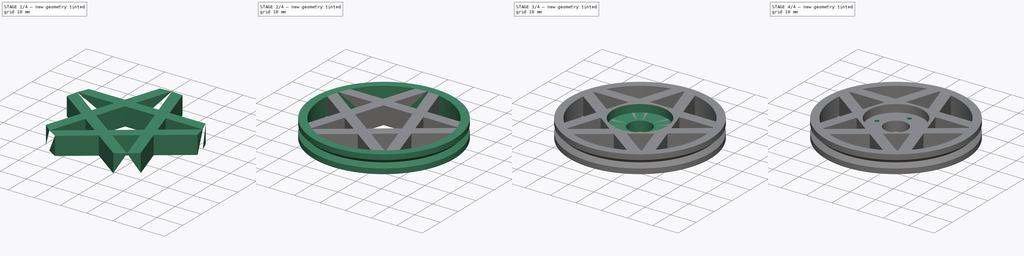
[diagram: build sequence overview — one tinted view per stage of 4, left to right]
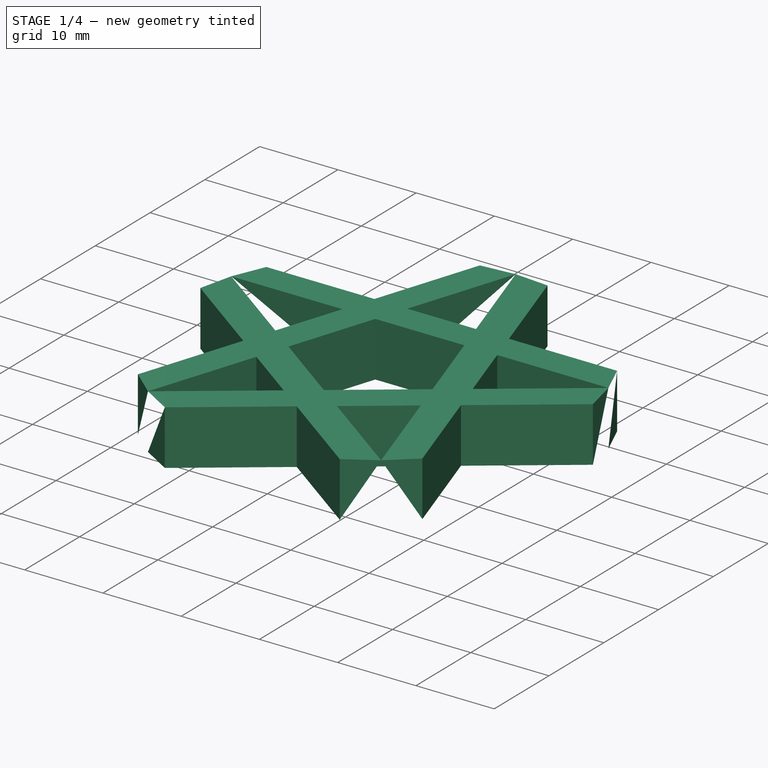
[diagram: stage 1 of 4 — iso view after this stage's code; geometry added in this stage tinted green]
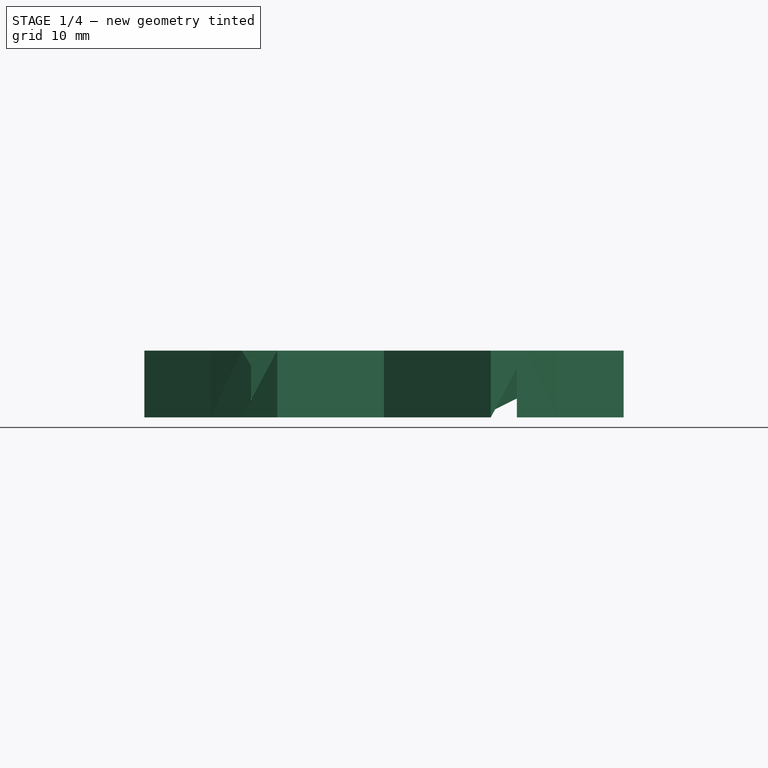
[diagram: stage 1 of 4 — front view after this stage's code; geometry added in this stage tinted green]
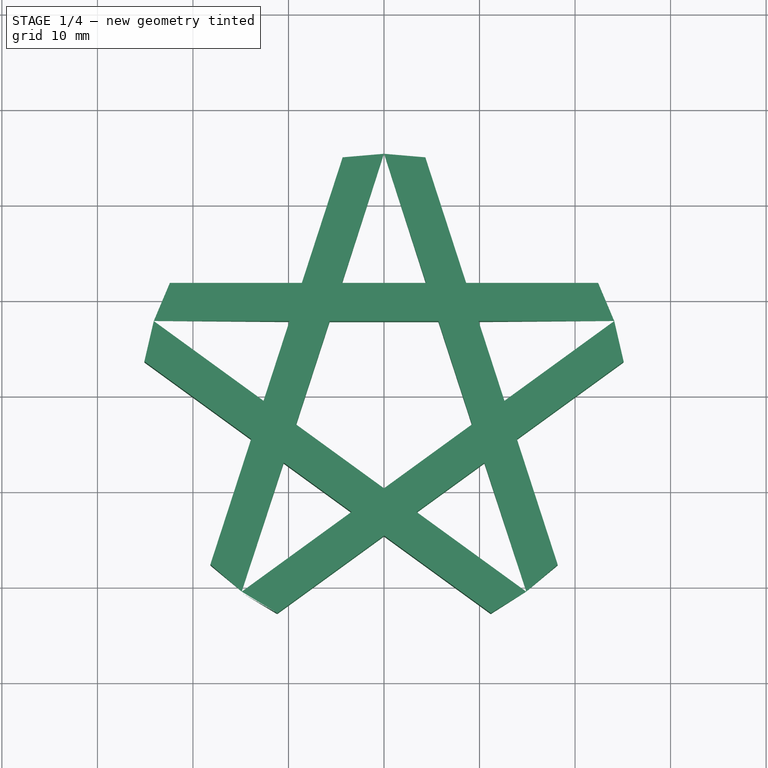
[diagram: stage 1 of 4 — top view after this stage's code; geometry added in this stage tinted green]
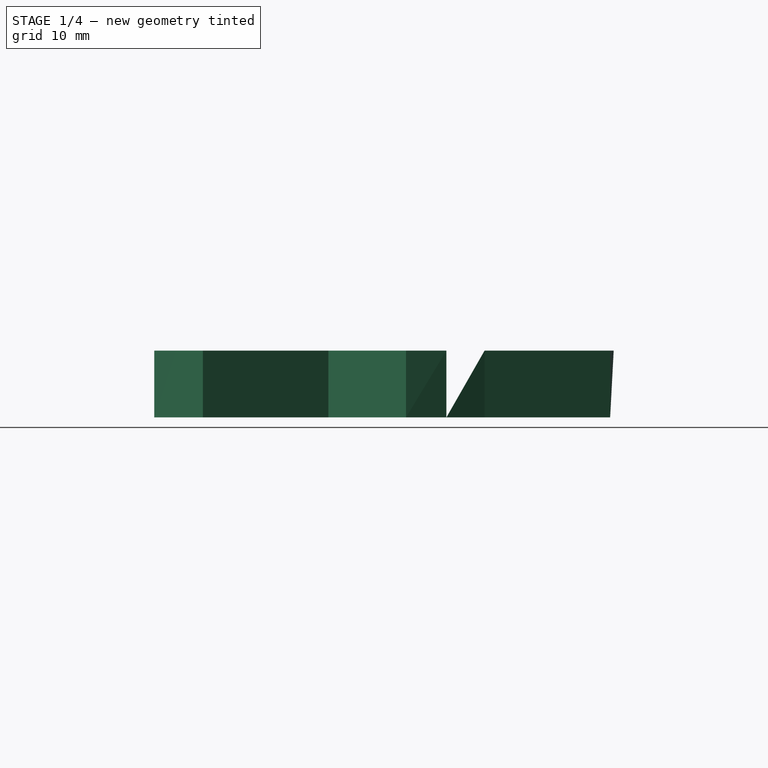
[diagram: stage 1 of 4 — right view after this stage's code; geometry added in this stage tinted green]
FCSTD DOCUMENT  (FreeCAD 0.14R3702 (Git))
Label: Miniskybot-wheel-pentacle-futaba3003
License: CC-BY 3.0
LicenseURL: http://creativecommons.org/licenses/by/3.0/
objects: Sketcher::SketchObject×6, Part::Feature×5, PartDesign::Pocket×3, PartDesign::Pad×2, Part::MultiFuse×2, PartDesign::Revolution×1, PartDesign::PolarPattern×1
note: 26 computed .brp shape members not serialized (recipe doc carries the construction recipe); baked Part::Feature solids carry a one-line shape summary decoded from their .brp

FEATURE [Sketcher::SketchObject] Sketch
  sketch-geometry (12):
    g0: Circle [constr] CenterX=0 CenterY=0 CenterZ=0 NormalX=0 NormalY=0 NormalZ=1 Radius=25.3438
    g1: LineSegment [constr] StartX=-9.20667 StartY=-2.99143 StartZ=0 EndX=-5.69003 EndY=7.83166 EndZ=0
    g2: LineSegment [constr] StartX=0 StartY=0 StartZ=0 EndX=0 EndY=-9.68046 EndZ=0
    g3: LineSegment [constr] StartX=0 StartY=0 StartZ=0 EndX=-9.20667 EndY=-2.99143 EndZ=0
    g4: LineSegment [constr] StartX=5.69003 StartY=7.83166 StartZ=0 EndX=9.20667 EndY=-2.99143 EndZ=0
    g5: LineSegment [constr] StartX=9.20667 StartY=-2.99143 StartZ=0 EndX=0 EndY=-9.68046 EndZ=0
    g6: LineSegment [constr] StartX=-5.69003 StartY=7.83166 StartZ=0 EndX=0 EndY=0 EndZ=0
    g7: LineSegment [constr] StartX=-24.1034 StartY=7.83166 StartZ=0 EndX=14.8967 EndY=-20.5035 EndZ=0
    g8: LineSegment StartX=-24.1034 StartY=7.83166 StartZ=0 EndX=24.1034 EndY=7.83166 EndZ=0
    g9: LineSegment StartX=-22.4125 StartY=11.8317 StartZ=0 EndX=22.4125 EndY=11.8317 EndZ=0
    g10: LineSegment StartX=-24.1034 StartY=7.83166 StartZ=0 EndX=-22.4125 EndY=11.8317 EndZ=0
    g11: LineSegment StartX=22.4125 StartY=11.8317 StartZ=0 EndX=24.1034 EndY=7.83166 EndZ=0
  constraints (31):
    c: Coincident(g0,g-1)
    c: PointOnObject(g2,g-2)
    c: Coincident(g2,g-1)
    c: Coincident(g3,g-1)
    c: Equal(g3,g2)
    c: Angle(g3,g2) = 1.25664
    c: Coincident(g4,g5)
    c: Symmetric(g1,g4,g-2)
    c: Symmetric(g4,g1,g-2)
    c: Coincident(g6,g1)
    c: Coincident(g6,g-1)
    c: Equal(g6,g3)
    c: Coincident(g1,g3)
    c: Coincident(g2,g5)
    c: Angle(g6,g3) = 1.25664
    c: PointOnObject(g7,g0)
    c: PointOnObject(g7,g0)
    c: PointOnObject(g1,g7)
    c: PointOnObject(g2,g7)
    c: Horizontal(g8)
    c: Coincident(g8,g7)
    c: PointOnObject(g8,g0)
    c: PointOnObject(g4,g8)
    c: Horizontal(g9)
    c: PointOnObject(g9,g0)
    c: PointOnObject(g9,g0)
    c: DistanceY(g9,g7) = -4
    c: Coincident(g10,g7)
    c: Coincident(g10,g9)
    c: Coincident(g11,g8)
    c: Coincident(g11,g9)
FEATURE [PartDesign::Pad] Pad
  Length = 7
  Length2 = 100
  Midplane = true
  Sketch = -> Sketch
  Type = 0
FEATURE [Part::Feature] Pad001
  Placement = pos=(0,0,0) rot=(0,0,1;1.25664rad)
  shape: bbox 18.18 x 45.85 x 7 mm, 6 faces (baked)
FEATURE [Part::Feature] Pad002
  Placement = pos=(0,0,0) rot=(0,0,1;2.51327rad)
  shape: bbox 39.98 x 30.58 x 7 mm, 6 faces (baked)
FEATURE [Part::Feature] Pad003
  Placement = pos=(0,0,0) rot=(0,0,1;3.76991rad)
  shape: bbox 39.98 x 30.58 x 7 mm, 6 faces (baked)
FEATURE [Part::Feature] Pad004
  Placement = pos=(0,0,0) rot=(0,0,-1;1.25664rad)
  shape: bbox 18.18 x 45.85 x 7 mm, 6 faces (baked)
FEATURE [Part::MultiFuse] Fusion  label="star"
  Shapes = -> [Pad,Pad002,Pad001,Pad004,Pad003]
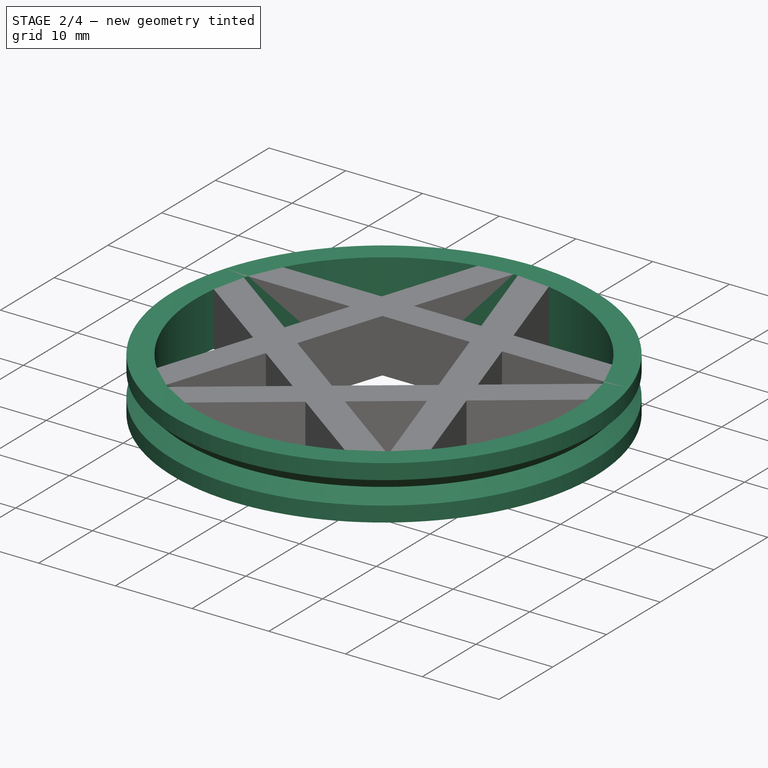
[diagram: stage 2 of 4 — iso view after this stage's code; geometry added in this stage tinted green]
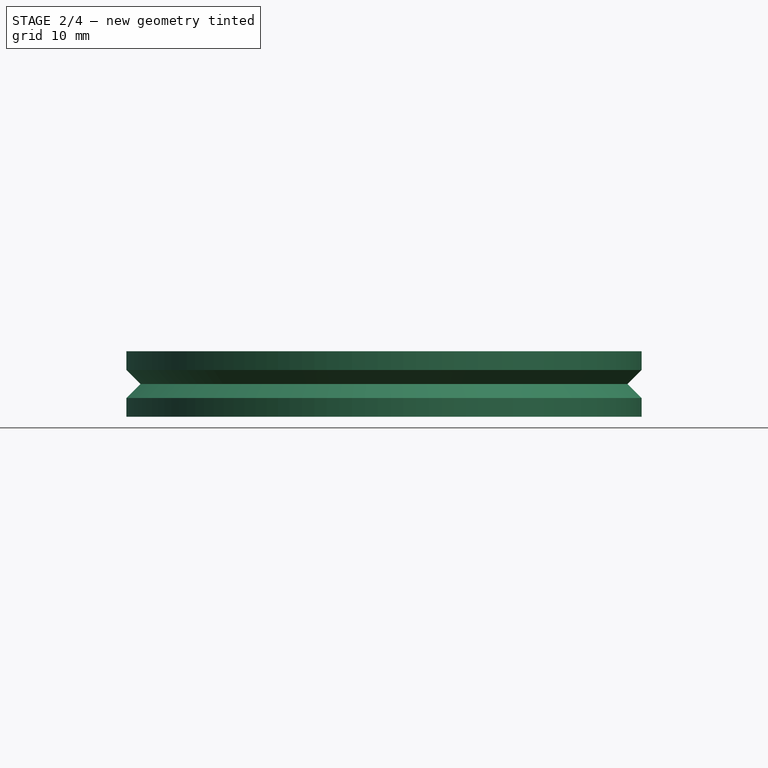
[diagram: stage 2 of 4 — front view after this stage's code; geometry added in this stage tinted green]
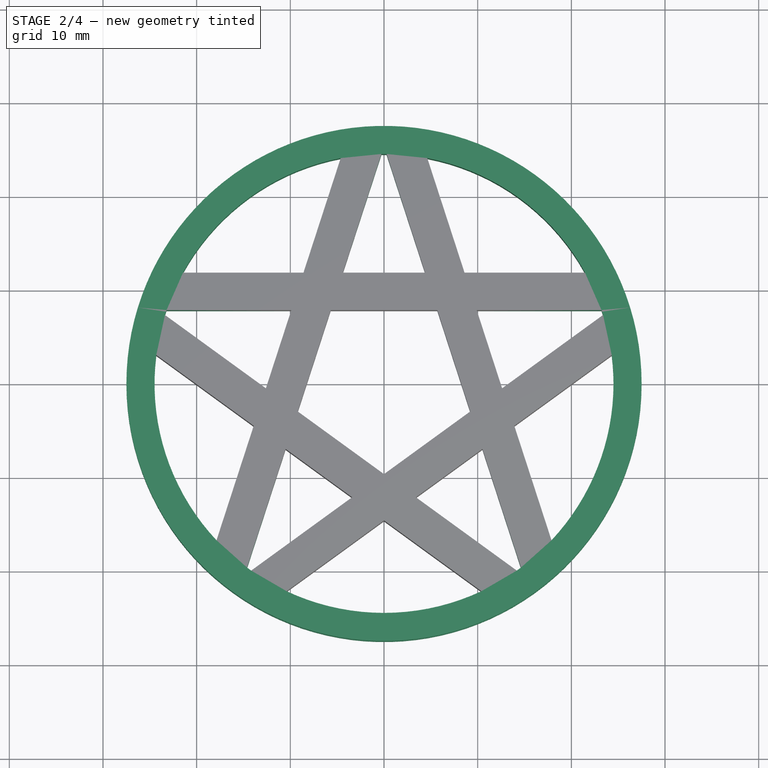
[diagram: stage 2 of 4 — top view after this stage's code; geometry added in this stage tinted green]
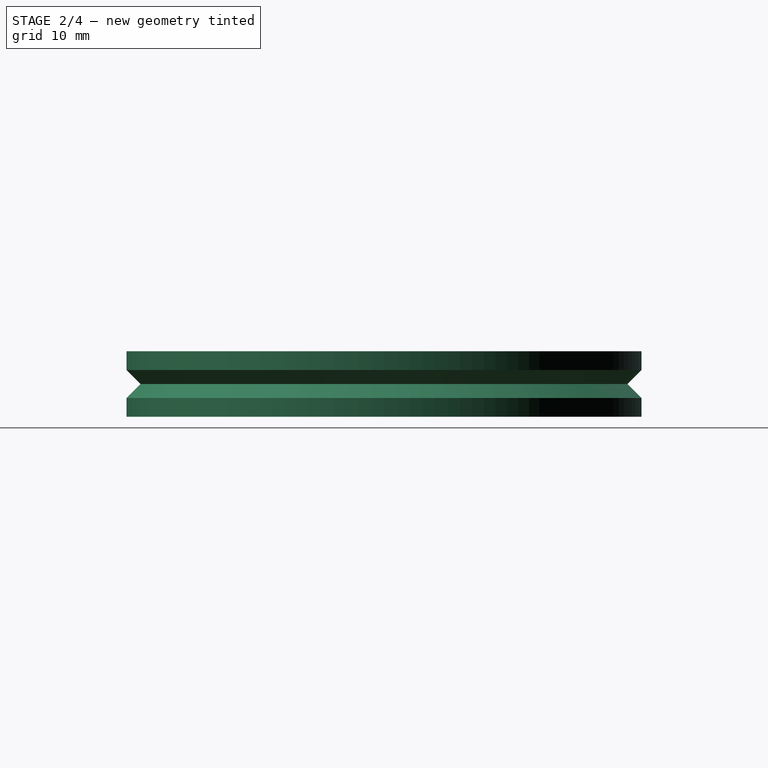
[diagram: stage 2 of 4 — right view after this stage's code; geometry added in this stage tinted green]
FEATURE [Sketcher::SketchObject] Sketch002  label="wheel-generic-sketch"
  Placement = pos=(0,0,0) rot=(1,0,0;1.5708rad)
  sketch-geometry (7):
    g0: LineSegment StartX=24.5 StartY=-3.5 StartZ=0 EndX=24.5 EndY=3.5 EndZ=0
    g1: LineSegment StartX=27.5 StartY=3.5 StartZ=0 EndX=27.5 EndY=1.5 EndZ=0
    g2: LineSegment StartX=27.5 StartY=1.5 StartZ=0 EndX=26 EndY=0 EndZ=0
    g3: LineSegment StartX=26 StartY=0 StartZ=0 EndX=27.5 EndY=-1.5 EndZ=0
    g4: LineSegment StartX=27.5 StartY=-1.5 StartZ=0 EndX=27.5 EndY=-3.5 EndZ=0
    g5: LineSegment StartX=24.5 StartY=3.5 StartZ=0 EndX=27.5 EndY=3.5 EndZ=0
    g6: LineSegment StartX=24.5 StartY=-3.5 StartZ=0 EndX=27.5 EndY=-3.5 EndZ=0
  constraints (20):
    c: Vertical(g0)
    c: Vertical(g1)
    c: Coincident(g1,g2)
    c: Coincident(g2,g3)
    c: Coincident(g3,g4)
    c: Vertical(g4)
    c: Symmetric(g0,g0,g-1)
    c: PointOnObject(g2,g-1)
    c: Symmetric(g3,g1,g-1)
    c: Angle(g2,g-1) = 2.35619
    c: DistanceY(g3,g1) = 3
    c: DistanceY(g0) = 7
    c: Coincident(g0,g5)
    c: Coincident(g6,g0)
    c: Coincident(g1,g5)
    c: Horizontal(g5)
    c: Coincident(g4,g6)
    c: Horizontal(g6)
    c: DistanceX(g5) = 3
    c: DistanceX(g-1,g1) = 27.5
FEATURE [PartDesign::Revolution] Revolution  label="rim"
  Angle = 360
  Axis = (0,0,1)
  Base = (0,0,0)
  Placement = pos=(0,0,0) rot=(1,0,0;1.5708rad)
  ReferenceAxis = -> Sketch002 [V_Axis]
  Reversed = true
  Sketch = -> Sketch002
FEATURE [Part::MultiFuse] Fusion001  label="pentacle-rim-1"
  Shapes = -> [Revolution,Fusion]
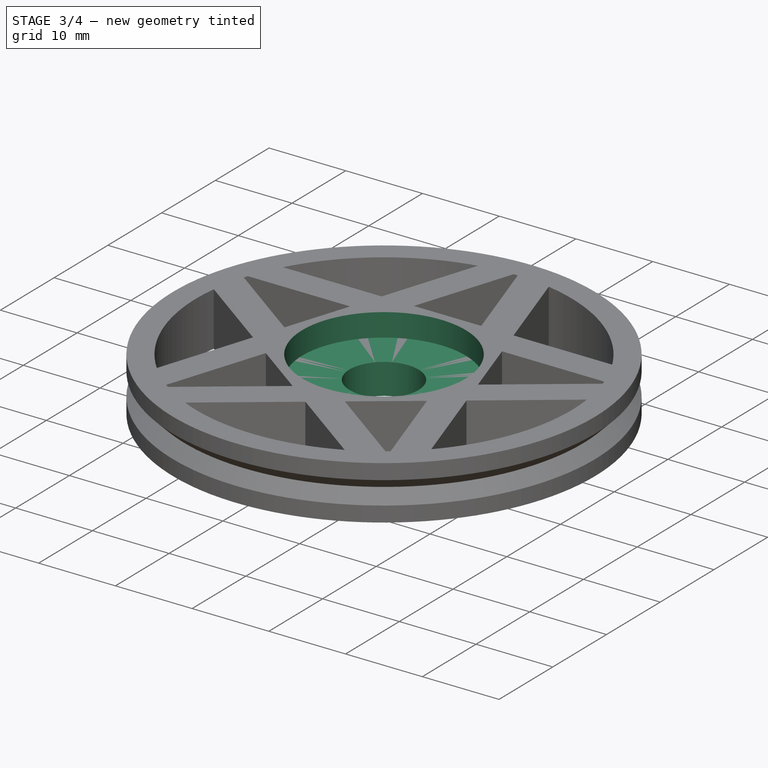
[diagram: stage 3 of 4 — iso view after this stage's code; geometry added in this stage tinted green]
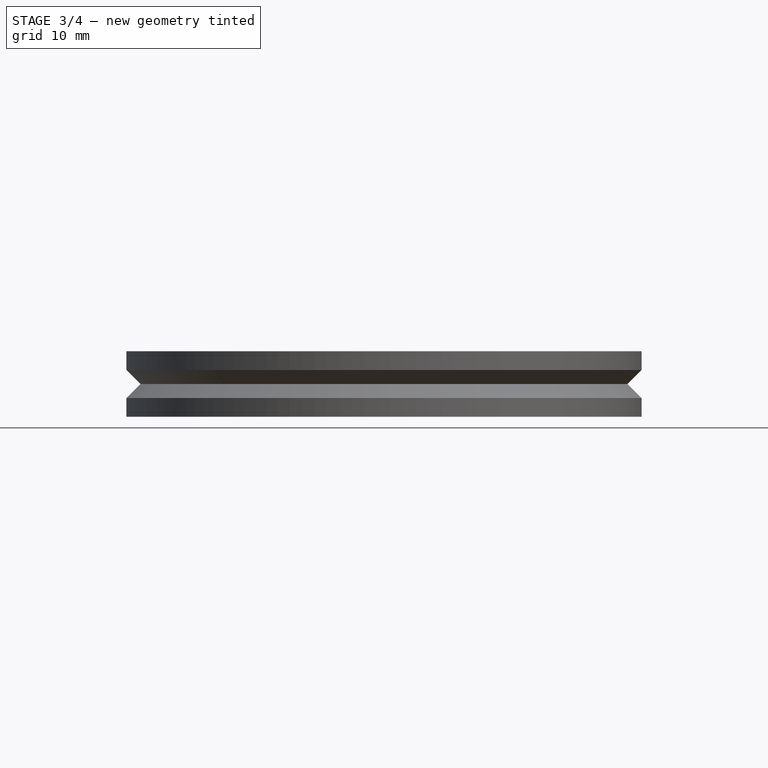
[diagram: stage 3 of 4 — front view after this stage's code; geometry added in this stage tinted green]
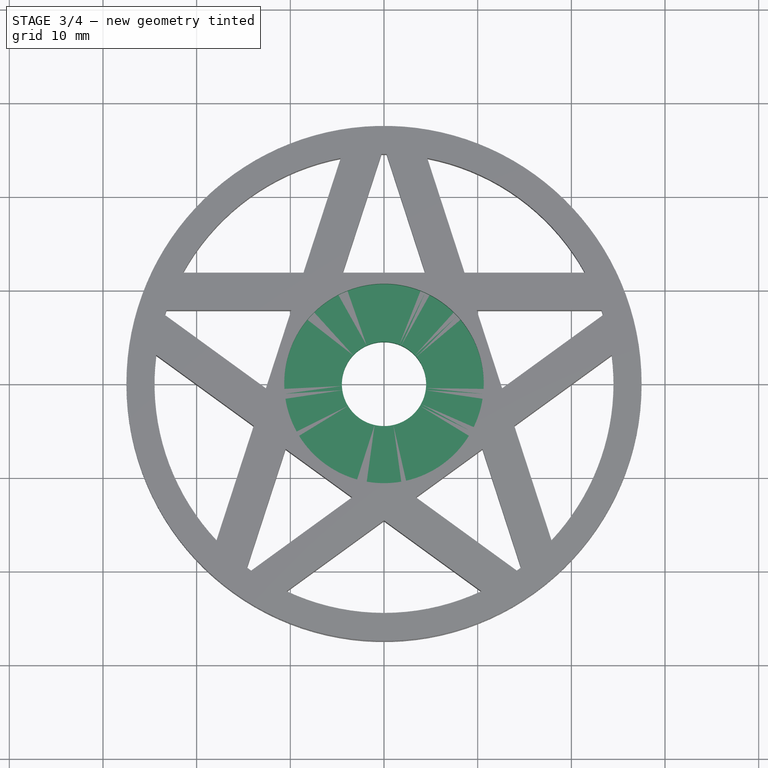
[diagram: stage 3 of 4 — top view after this stage's code; geometry added in this stage tinted green]
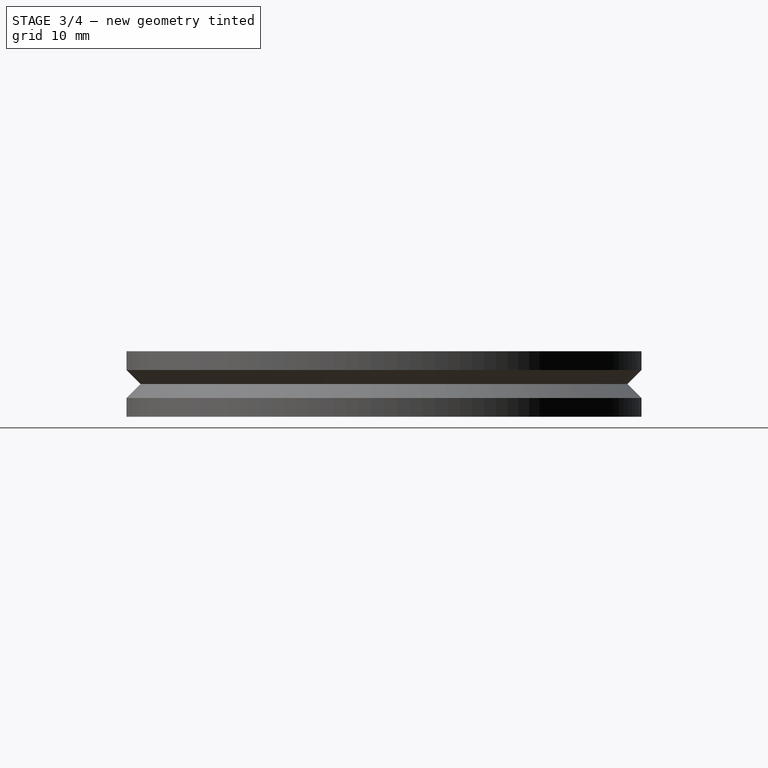
[diagram: stage 3 of 4 — right view after this stage's code; geometry added in this stage tinted green]
FEATURE [Sketcher::SketchObject] Sketch003
  ExternalGeometry = -> [Fusion001]
  Placement = pos=(0,0,3.5) rot=(0,0,1;0rad)
  Support = -> Fusion001 [Face5]
  sketch-geometry (5):
    g0: LineSegment StartX=-5.69003 StartY=7.83166 StartZ=0 EndX=5.69003 EndY=7.83166 EndZ=0
    g1: LineSegment StartX=5.69003 StartY=7.83166 StartZ=0 EndX=9.20667 EndY=-2.99143 EndZ=0
    g2: LineSegment StartX=9.20667 StartY=-2.99143 StartZ=0 EndX=0 EndY=-9.68046 EndZ=0
    g3: LineSegment StartX=0 StartY=-9.68046 StartZ=0 EndX=-9.20667 EndY=-2.99143 EndZ=0
    g4: LineSegment StartX=-9.20667 StartY=-2.99143 StartZ=0 EndX=-5.69003 EndY=7.83166 EndZ=0
  constraints (10):
    c: Coincident(g0,g1)
    c: Coincident(g1,g2)
    c: Coincident(g2,g3)
    c: Coincident(g3,g4)
    c: Coincident(g4,g0)
    c: Coincident(g0,g-3)
    c: Coincident(g0,g-3)
    c: Coincident(g1,g-5)
    c: Coincident(g2,g-5)
    c: Coincident(g3,g-4)
FEATURE [PartDesign::Pad] Pad005  label="pentacle-wheel-1"
  Length = 7
  Length2 = 100
  Reversed = true
  Sketch = -> Sketch003
  Type = 0
FEATURE [Sketcher::SketchObject] Sketch001  label="rounded-horn-sketch"
  Placement = pos=(0,0,3.5) rot=(0,0,1;0rad)
  Support = -> Pad005 [Face5]
  sketch-geometry (1):
    g0: Circle CenterX=0 CenterY=0 CenterZ=0 NormalX=0 NormalY=0 NormalZ=1 Radius=10.65
  constraints (3):
    c: PointOnObject(g0,g-2)
    c: Radius(g0) = 10.65
    c: Coincident(g0,g-1)
FEATURE [PartDesign::Pocket] Pocket  label="rounded-horn"
  Length = 3
  Sketch = -> Sketch001
  Type = 0
FEATURE [Sketcher::SketchObject] Sketch004  label="shaft-drill-sketch"
  Placement = pos=(0,0,0.5) rot=(0,0,1;0rad)
  Support = -> Pocket [Face43]
  sketch-geometry (1):
    g0: Circle CenterX=0 CenterY=0 CenterZ=0 NormalX=0 NormalY=0 NormalZ=1 Radius=4.5
  constraints (2):
    c: Coincident(g0,g-1)
    c: Radius(g0) = 4.5
FEATURE [PartDesign::Pocket] Pocket001  label="shaft-drill"
  Length = 5
  Sketch = -> Sketch004
  Type = 1
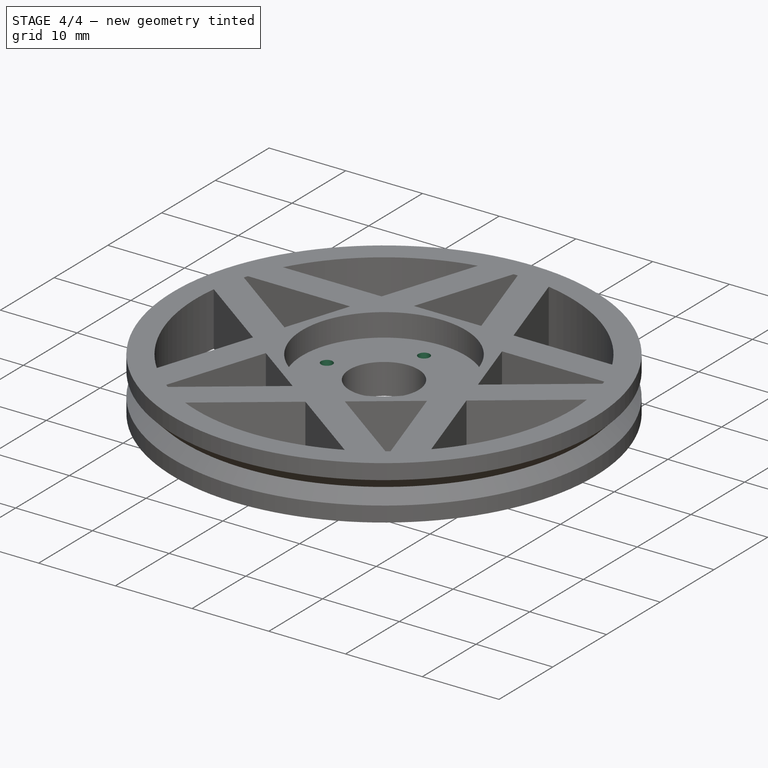
[diagram: stage 4 of 4 — iso view after this stage's code; geometry added in this stage tinted green]
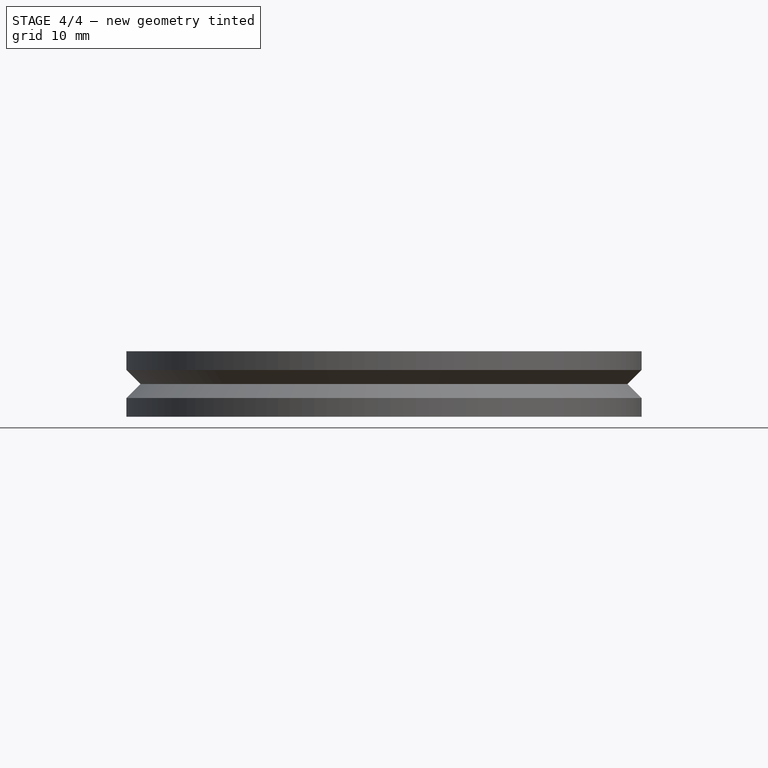
[diagram: stage 4 of 4 — front view after this stage's code; geometry added in this stage tinted green]
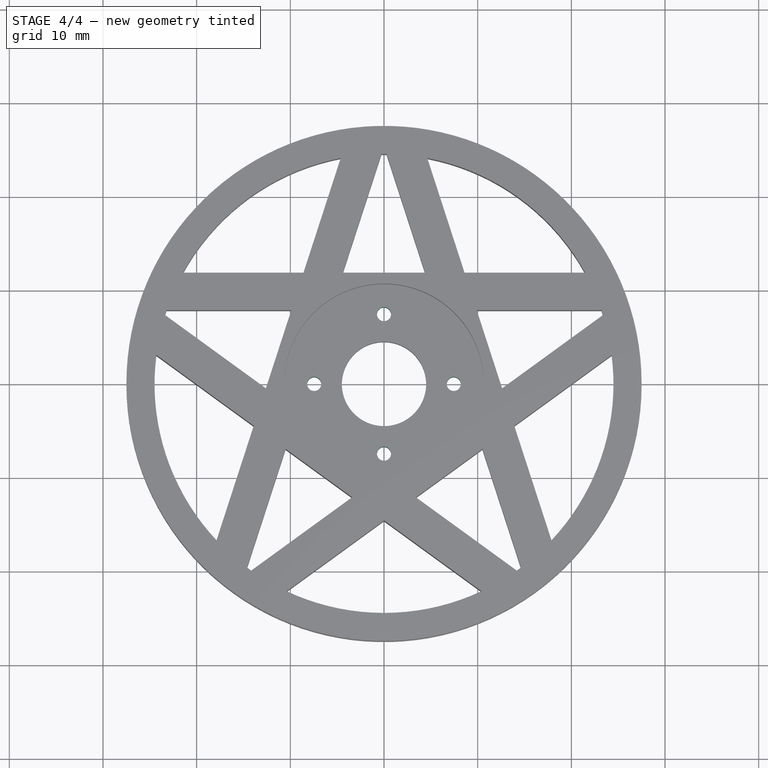
[diagram: stage 4 of 4 — top view after this stage's code; geometry added in this stage tinted green]
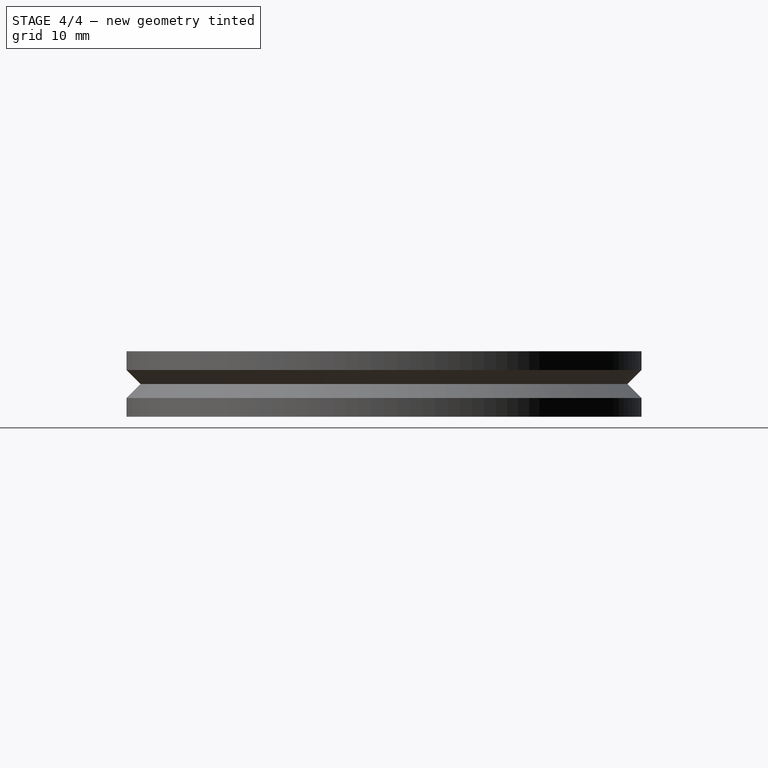
[diagram: stage 4 of 4 — right view after this stage's code; geometry added in this stage tinted green]
FEATURE [Sketcher::SketchObject] Sketch005  label="horn-drill-sketch"
  Placement = pos=(0,0,0.5) rot=(0,0,1;0rad)
  Support = -> Pocket001 [Face43]
  sketch-geometry (3):
    g0: Circle CenterX=0 CenterY=-7.45 CenterZ=0 NormalX=0 NormalY=0 NormalZ=1 Radius=0.75
    g1: GeomPoint [constr] X=0 Y=-6.7 Z=0
    g2: LineSegment [constr] StartX=0 StartY=6.7 StartZ=0 EndX=0 EndY=-6.7 EndZ=0
  constraints (8):
    c: PointOnObject(g0,g-2)
    c: Vertical(g2)
    c: Coincident(g2,g1)
    c: Symmetric(g1,g2,g-1)
    c: Radius(g0) = 0.75
    c: PointOnObject(g1,g-2)
    c: PointOnObject(g1,g0)
    c: DistanceY(g2) = -13.4
FEATURE [PartDesign::Pocket] Pocket002  label="horn-drill-master"
  Length = 5
  Sketch = -> Sketch005
  Type = 1
FEATURE [PartDesign::PolarPattern] PolarPattern  label="horn-drills"
  Angle = 360
  Axis = -> Sketch005 [N_Axis]
  Occurrences = 4
  Originals = -> [Pocket002]
FEATURE [Part::Feature] PolarPattern001  label="Miniskybot-wheel-pentacle-futaba3003-final"
  shape: bbox 55 x 55 x 7 mm, 49 faces (baked)
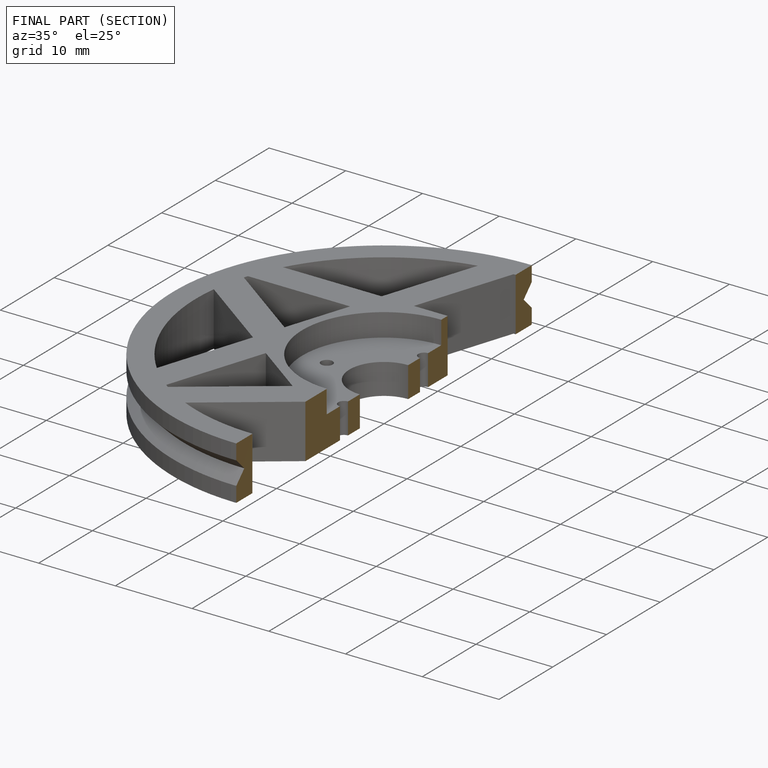
[diagram: finished part — half-section view (interior)]
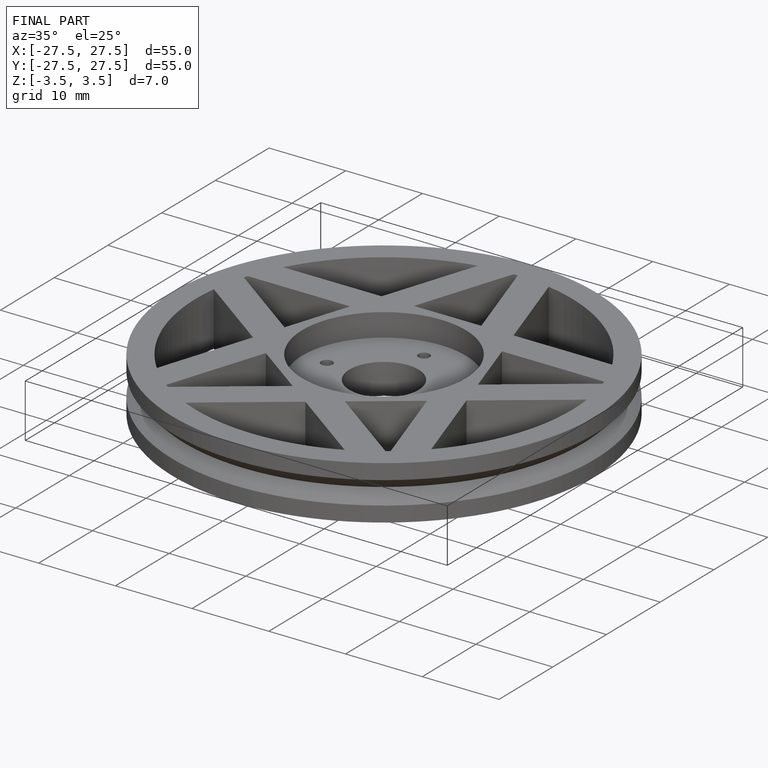
[diagram: finished part — iso view with bounding-box wireframe]
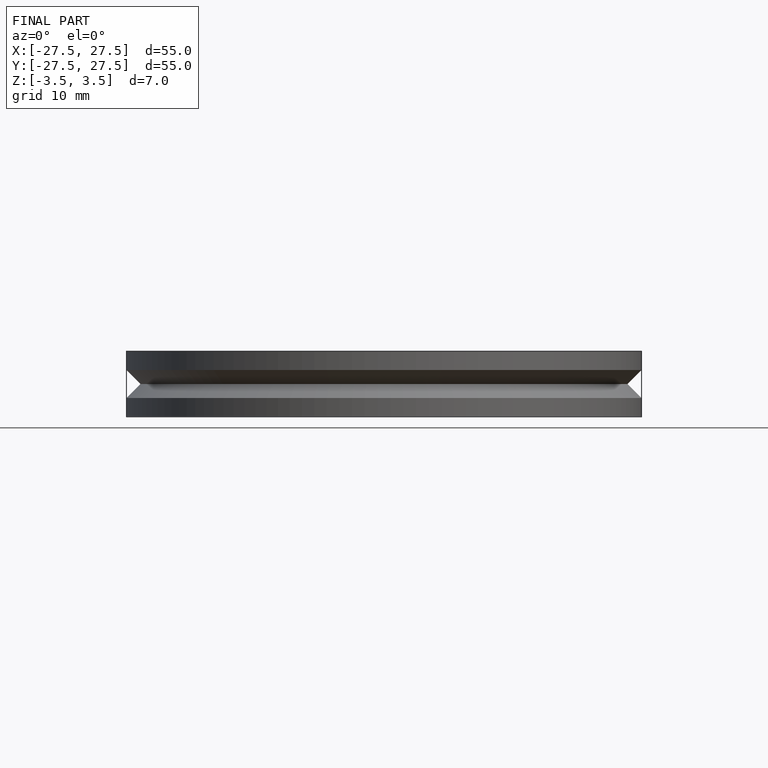
[diagram: finished part — front view with bounding-box wireframe]
